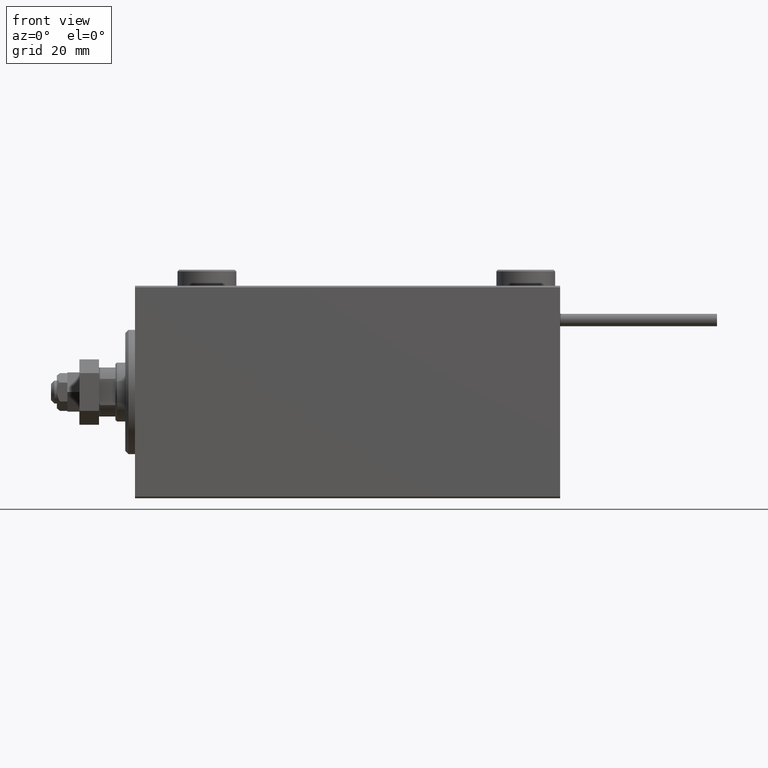
[diagram: clean part render]
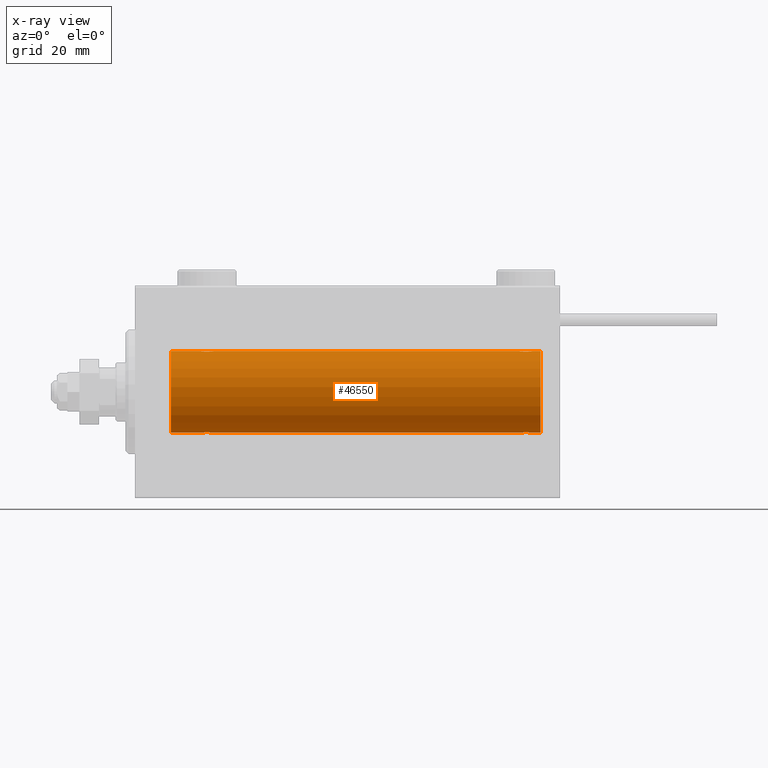
[diagram: x-ray — body ghosted, one internal face saturated and labeled with its STEP entity id]
A machine part, front view, then the same camera in x-ray: the body is ghosted and one INTERNAL B-rep face — a face not visible from any outside direction — is saturated and labeled: STEP entity #46550.
In plain terms, the highlighted cylindrical surface (partial cylindrical patch) has radius 12.5 mm, axis along (-1, -0, -0).
Its self-contained STEP definition (entity closure, byte-faithful):
#644 = EDGE_CURVE ( 'NONE', #34978, #51363, #21155, .T. ) ;
#934 = EDGE_CURVE ( 'NONE', #18625, #50167, #28142, .T. ) ;
#1193 = CARTESIAN_POINT ( 'NONE',  ( 117.4999999999999716, -0.2646816682749930094, -12.49999999999999289 ) ) ;
#1333 = ORIENTED_EDGE ( 'NONE', *, *, #24112, .T. ) ;
#1460 = CARTESIAN_POINT ( 'NONE',  ( 19.99999999999999645, -3.213890523917628161E-15, -12.50000000000000000 ) ) ;
#1518 = CARTESIAN_POINT ( 'NONE',  ( 20.00000000000000000, -0.2612140938986765581, 12.50000000000000000 ) ) ;
#1784 = CARTESIAN_POINT ( 'NONE',  ( 21.35356103036408371, -1.897190184049190043, 12.35529285772521391 ) ) ;
#1973 = CARTESIAN_POINT ( 'NONE',  ( 121.5000000000000284, -0.2612140938986731720, -12.50000000000000533 ) ) ;
#2295 = CARTESIAN_POINT ( 'NONE',  ( 20.20214393531741237, -0.8858253204748030019, 12.46915613403961132 ) ) ;
#3347 = ORIENTED_EDGE ( 'NONE', *, *, #13099, .T. ) ;
#4425 = EDGE_CURVE ( 'NONE', #52083, #15222, #25704, .T. ) ;
#4445 = EDGE_CURVE ( 'NONE', #47900, #41510, #8166, .T. ) ;
#5289 = VERTEX_POINT ( 'NONE', #48443 ) ;
#5433 = CARTESIAN_POINT ( 'NONE',  ( 121.4474434057233339, -0.5247436444070315842, -12.49130933415156797 ) ) ;
#5506 = CARTESIAN_POINT ( 'NONE',  ( 23.74662136620892383, -1.008535157355843648, 12.46157701909767823 ) ) ;
#5510 = CARTESIAN_POINT ( 'NONE',  ( 118.4965442592331613, -1.734959850168412254, 12.37922718965051061 ) ) ;
#5695 = DIRECTION ( 'NONE',  ( -1.000000000000000000, -0.000000000000000000, -0.000000000000000000 ) ) ;
#5948 = CARTESIAN_POINT ( 'NONE',  ( 121.5000000000000284, 1.530808426268740384E-15, -12.50000000000000000 ) ) ;
#6024 = CARTESIAN_POINT ( 'NONE',  ( 21.73608626897564733, -1.986793270638199882, 12.34112317291865146 ) ) ;
#6028 = CARTESIAN_POINT ( 'NONE',  ( 124.0000000000000000, 1.530808498934191521E-15, -12.50000000000000000 ) ) ;
#6469 = CARTESIAN_POINT ( 'NONE',  ( 117.7533786337911152, -1.008535157355854750, -12.46157701909767823 ) ) ;
#7078 = CARTESIAN_POINT ( 'NONE',  ( 120.1442527879773081, -1.897913903092038890, 12.35518060345724933 ) ) ;
#7399 = ORIENTED_EDGE ( 'NONE', *, *, #644, .T. ) ;
#8166 = B_SPLINE_CURVE_WITH_KNOTS ( 'NONE', 3,
 ( #30484, #46715, #13484, #10280, #26488, #33435, #45664, #41663, #29704, #5510, #21720, #33953, #43513, #38968, #11597, #51490, #27006, #39757, #7078, #46982, #51226, #14792, #19299, #31539, #52021, #47770, #15589, #31014 ),
 .UNSPECIFIED., .F., .F.,
 ( 4, 2, 2, 2, 2, 2, 2, 2, 2, 2, 2, 2, 2, 4 ),
 ( 0.006262980370572151546, 0.007045658964677331722, 0.007436998261729929616, 0.007828337558782528377, 0.008219676855835125404, 0.008611016152887724165, 0.009002355449940321191, 0.009393694746992919953, 0.009785034044045518714, 0.01017637334109811748, 0.01056771263815071624, 0.01095905193520331326, 0.01174173052930854028, 0.01252440912341376555 ),
 .UNSPECIFIED. ) ;
#8787 = CARTESIAN_POINT ( 'NONE',  ( 117.5000000000000142, -7.266434456262306043E-23, 12.50000000000000000 ) ) ;
#9416 = CARTESIAN_POINT ( 'NONE',  ( 120.1464389696359518, -1.897190184049184269, -12.35529285772521391 ) ) ;
#9430 = CARTESIAN_POINT ( 'NONE',  ( 20.05334320101619738, -0.5275951738695662252, -12.49118442338578561 ) ) ;
#9489 = CARTESIAN_POINT ( 'NONE',  ( 22.26093497285606304, -1.987194304939079004, 12.34105826212746138 ) ) ;
#9501 = ORIENTED_EDGE ( 'NONE', *, *, #934, .T. ) ;
#9690 = CARTESIAN_POINT ( 'NONE',  ( 23.94744340572329833, -0.5247436444070328054, -12.49130933415156619 ) ) ;
#9841 = DIRECTION ( 'NONE',  ( -1.000000000000000000, -0.000000000000000000, -0.000000000000000000 ) ) ;
#10202 = CARTESIAN_POINT ( 'NONE',  ( 119.7639137310243882, -1.986793270638199882, -12.34112317291865146 ) ) ;
#10280 = CARTESIAN_POINT ( 'NONE',  ( 117.7021439353173946, -0.8858253204748003373, 12.46915613403960421 ) ) ;
#10325 = CARTESIAN_POINT ( 'NONE',  ( 124.0000000000000000, 0.000000000000000000, 0.000000000000000000 ) ) ;
#11597 = CARTESIAN_POINT ( 'NONE',  ( 119.3665974954870705, -1.999916920503812534, 12.33897614545467647 ) ) ;
#13099 = EDGE_CURVE ( 'NONE', #5289, #35211, #43477, .T. ) ;
#13167 = EDGE_CURVE ( 'NONE', #34978, #35211, #13776, .T. ) ;
#13417 = CARTESIAN_POINT ( 'NONE',  ( 20.78145880458060901, -1.591305132013878021, -12.39851226212236313 ) ) ;
#13484 = CARTESIAN_POINT ( 'NONE',  ( 117.5525565942766946, -0.5247436444070334716, 12.49130933415156441 ) ) ;
#13747 = CARTESIAN_POINT ( 'NONE',  ( 24.00000000000000000, -2.019790789754703983E-15, 12.50000000000000000 ) ) ;
#13776 = LINE ( 'NONE', #29994, #38379 ) ;
#14468 = CARTESIAN_POINT ( 'NONE',  ( 23.50722151467992660, -1.321088093821078502, -12.43033959299025248 ) ) ;
#14788 = CARTESIAN_POINT ( 'NONE',  ( 21.86659749548704212, -1.999916920503819862, 12.33897614545467469 ) ) ;
#14792 = CARTESIAN_POINT ( 'NONE',  ( 120.7185411954193910, -1.591305132013873358, 12.39851226212235957 ) ) ;
#15141 = ORIENTED_EDGE ( 'NONE', *, *, #40535, .T. ) ;
#15222 = VERTEX_POINT ( 'NONE', #37769 ) ;
#15254 = ORIENTED_EDGE ( 'NONE', *, *, #49225, .F. ) ;
#15589 = CARTESIAN_POINT ( 'NONE',  ( 121.5000000000000568, -0.2646816682749792982, 12.50000000000000178 ) ) ;
#16778 = B_SPLINE_CURVE_WITH_KNOTS ( 'NONE', 3,
 ( #5948, #1973, #5433, #50878, #17913, #30404, #34130, #42106, #45854, #26145, #50368, #9416, #42364, #10202, #25624, #22160, #26410, #38634, #18423, #21643, #34646, #46898, #26668, #42898, #6469, #22683, #1193, #17650 ),
 .UNSPECIFIED., .F., .F.,
 ( 4, 2, 2, 2, 2, 2, 2, 2, 2, 2, 2, 2, 2, 4 ),
 ( 0.006262980370572161955, 0.007045658964677351671, 0.007436998261729953902, 0.007828337558782556133, 0.008219676855835158363, 0.008611016152887760594, 0.009002355449940364560, 0.009393694746992966790, 0.009785034044045570756, 0.01017637334109817299, 0.01056771263815077522, 0.01095905193520337745, 0.01174173052930858364, 0.01252440912341378984 ),
 .UNSPECIFIED. ) ;
#17010 = EDGE_LOOP ( 'NONE', ( #50822, #24755, #1333, #15141, #9501, #48637, #3347, #33100, #7399, #15254, #28986, #20726 ) ) ;
#17068 = CARTESIAN_POINT ( 'NONE',  ( 124.0000000000000000, 0.000000000000000000, 12.50000000000000000 ) ) ;
#17139 = AXIS2_PLACEMENT_3D ( 'NONE', #21590, #33304, #20800 ) ;
#17409 = CARTESIAN_POINT ( 'NONE',  ( 23.73563078019576977, -1.002396200863559184, -12.46022444231050663 ) ) ;
#17650 = CARTESIAN_POINT ( 'NONE',  ( 117.5000000000000142, -1.169483437805093529E-14, -12.50000000000000000 ) ) ;
#17913 = CARTESIAN_POINT ( 'NONE',  ( 121.2356307801957769, -1.002396200863557185, -12.46022444231050308 ) ) ;
#17985 = CARTESIAN_POINT ( 'NONE',  ( 22.88616153879432957, -1.797736511708064366, 12.37015393445321010 ) ) ;
#18423 = CARTESIAN_POINT ( 'NONE',  ( 118.8557472120227345, -1.897913903092052657, -12.35518060345725111 ) ) ;
#18438 = CARTESIAN_POINT ( 'NONE',  ( 23.79785606468258052, -0.8858253204748003373, -12.46915613403960954 ) ) ;
#18625 = VERTEX_POINT ( 'NONE', #32007 ) ;
#18769 = CARTESIAN_POINT ( 'NONE',  ( 20.41018909771709744, -1.220538259806348114, 12.44075068685996754 ) ) ;
#19212 = DIRECTION ( 'NONE',  ( -1.000000000000000000, -0.000000000000000000, -0.000000000000000000 ) ) ;
#19299 = CARTESIAN_POINT ( 'NONE',  ( 120.8211671285144604, -1.507135374967687458, 12.40915432986586886 ) ) ;
#19552 = CARTESIAN_POINT ( 'NONE',  ( 117.5000000000000142, -1.169483437805093529E-14, -12.50000000000000000 ) ) ;
#19925 = DIRECTION ( 'NONE',  ( -1.000000000000000000, 0.000000000000000000, 0.000000000000000000 ) ) ;
#20084 = EDGE_CURVE ( 'NONE', #50795, #41510, #23117, .T. ) ;
#20726 = ORIENTED_EDGE ( 'NONE', *, *, #20084, .F. ) ;
#20800 = DIRECTION ( 'NONE',  ( 0.000000000000000000, 0.000000000000000000, 1.000000000000000000 ) ) ;
#20942 = CARTESIAN_POINT ( 'NONE',  ( 124.0000000000000000, 1.530808498934191521E-15, -12.50000000000000000 ) ) ;
#21155 = B_SPLINE_CURVE_WITH_KNOTS ( 'NONE', 3,
 ( #42440, #1518, #38707, #2295, #30746, #18769, #22234, #46976, #26743, #42972, #22755, #1784, #34990, #6024, #14788, #31010, #9489, #25964, #50434, #17985, #34205, #25701, #41921, #26216, #5506, #21717, #50184, #13747 ),
 .UNSPECIFIED., .F., .F.,
 ( 4, 2, 2, 2, 2, 2, 2, 2, 2, 2, 2, 2, 2, 4 ),
 ( 0.006262980370572162822, 0.007045658964677358610, 0.007436998261729958239, 0.007828337558782557867, 0.008219676855835158363, 0.008611016152887758859, 0.009002355449940359355, 0.009393694746992958117, 0.009785034044045558613, 0.01017637334109815911, 0.01056771263815075960, 0.01095905193520336010, 0.01174173052930856803, 0.01252440912341377596 ),
 .UNSPECIFIED. ) ;
#21590 = CARTESIAN_POINT ( 'NONE',  ( 124.0000000000000000, 0.000000000000000000, 0.000000000000000000 ) ) ;
#21643 = CARTESIAN_POINT ( 'NONE',  ( 118.6138384612056456, -1.797736511708069473, -12.37015393445320477 ) ) ;
#21659 = CARTESIAN_POINT ( 'NONE',  ( 20.40255225308977671, -1.231226695485369893, -12.44059298055988627 ) ) ;
#21717 = CARTESIAN_POINT ( 'NONE',  ( 23.94665679898379906, -0.5275951738695691118, 12.49118442338578561 ) ) ;
#21720 = CARTESIAN_POINT ( 'NONE',  ( 118.6112527420296772, -1.796480516834681573, 12.37033750336835958 ) ) ;
#21911 = CARTESIAN_POINT ( 'NONE',  ( 23.00345574076691335, -1.734959850168410256, -12.37922718965050528 ) ) ;
#22160 = CARTESIAN_POINT ( 'NONE',  ( 119.3691003267658459, -2.000082296475571120, -12.33894933996983134 ) ) ;
#22234 = CARTESIAN_POINT ( 'NONE',  ( 20.49277848532006274, -1.321088093821079168, 12.43033959299025071 ) ) ;
#22238 = DIRECTION ( 'NONE',  ( -1.000000000000000000, -0.000000000000000000, -0.000000000000000000 ) ) ;
#22683 = CARTESIAN_POINT ( 'NONE',  ( 117.5533432010162187, -0.5275951738695822124, -12.49118442338578383 ) ) ;
#22755 = CARTESIAN_POINT ( 'NONE',  ( 21.11125274202960256, -1.796480516834689567, 12.37033750336835602 ) ) ;
#23117 = LINE ( 'NONE', #51051, #32693 ) ;
#24112 = EDGE_CURVE ( 'NONE', #15222, #35330, #16778, .T. ) ;
#24755 = ORIENTED_EDGE ( 'NONE', *, *, #4425, .T. ) ;
#25624 = CARTESIAN_POINT ( 'NONE',  ( 119.6334025045129863, -1.999916920503819862, -12.33897614545467469 ) ) ;
#25640 = CARTESIAN_POINT ( 'NONE',  ( 21.11383846120566332, -1.797736511708062368, -12.37015393445320122 ) ) ;
#25701 = CARTESIAN_POINT ( 'NONE',  ( 23.21854119541937678, -1.591305132013879131, 12.39851226212236135 ) ) ;
#25704 = LINE ( 'NONE', #6028, #49236 ) ;
#25905 = CARTESIAN_POINT ( 'NONE',  ( 21.35574721202270254, -1.897913903092047327, -12.35518060345725289 ) ) ;
#25964 = CARTESIAN_POINT ( 'NONE',  ( 22.51693726697628506, -1.936441098420709439, 12.34912369794528786 ) ) ;
#26145 = CARTESIAN_POINT ( 'NONE',  ( 120.5034557407669240, -1.734959850168412476, -12.37922718965050528 ) ) ;
#26216 = CARTESIAN_POINT ( 'NONE',  ( 23.59744774691022684, -1.231226695485370337, 12.44059298055987917 ) ) ;
#26410 = CARTESIAN_POINT ( 'NONE',  ( 119.2390650271439370, -1.987194304939082556, -12.34105826212746138 ) ) ;
#26424 = CARTESIAN_POINT ( 'NONE',  ( 21.86910032676576421, -2.000082296475566679, -12.33894933996983490 ) ) ;
#26488 = CARTESIAN_POINT ( 'NONE',  ( 117.7643692198042658, -1.002396200863564291, 12.46022444231050663 ) ) ;
#26668 = CARTESIAN_POINT ( 'NONE',  ( 118.1788328714855822, -1.507135374967708552, -12.40915432986586531 ) ) ;
#26682 = CARTESIAN_POINT ( 'NONE',  ( 22.13340250451295077, -1.999916920503817197, -12.33897614545467469 ) ) ;
#26743 = CARTESIAN_POINT ( 'NONE',  ( 20.77972850102579372, -1.589951752150277953, 12.39868561261689095 ) ) ;
#27006 = CARTESIAN_POINT ( 'NONE',  ( 119.7609349728560630, -1.987194304939074341, 12.34105826212746138 ) ) ;
#28142 = B_SPLINE_CURVE_WITH_KNOTS ( 'NONE', 3,
 ( #38902, #50634, #9690, #18438, #17409, #33892, #14468, #46915, #30419, #21911, #41860, #29907, #46655, #29640, #26682, #26424, #34662, #42913, #25905, #25640, #33632, #13417, #50123, #21659, #45868, #9430, #37871, #1460 ),
 .UNSPECIFIED., .F., .F.,
 ( 4, 2, 2, 2, 2, 2, 2, 2, 2, 2, 2, 2, 2, 4 ),
 ( 0.006262980370572176700, 0.007045658964677373355, 0.007436998261729973851, 0.007828337558782575215, 0.008219676855835175711, 0.008611016152887776207, 0.009002355449940376703, 0.009393694746992977199, 0.009785034044045577695, 0.01017637334109817646, 0.01056771263815077869, 0.01095905193520337745, 0.01174173052930858711, 0.01252440912341379504 ),
 .UNSPECIFIED. ) ;
#28261 = DIRECTION ( 'NONE',  ( -1.000000000000000000, -0.000000000000000000, -0.000000000000000000 ) ) ;
#28517 = LINE ( 'NONE', #17068, #50398 ) ;
#28986 = ORIENTED_EDGE ( 'NONE', *, *, #4445, .T. ) ;
#29640 = CARTESIAN_POINT ( 'NONE',  ( 22.26391373102435622, -1.986793270638196551, -12.34112317291864791 ) ) ;
#29702 = VECTOR ( 'NONE', #19212, 1000.000000000000000 ) ;
#29704 = CARTESIAN_POINT ( 'NONE',  ( 118.2797285010258008, -1.589951752150278397, 12.39868561261688740 ) ) ;
#29907 = CARTESIAN_POINT ( 'NONE',  ( 22.64643896963591985, -1.897190184049187378, -12.35529285772521924 ) ) ;
#29994 = CARTESIAN_POINT ( 'NONE',  ( 124.0000000000000000, 0.000000000000000000, 12.50000000000000000 ) ) ;
#30095 = CARTESIAN_POINT ( 'NONE',  ( 24.00000000000000000, -2.019790789754703983E-15, 12.50000000000000000 ) ) ;
#30404 = CARTESIAN_POINT ( 'NONE',  ( 121.0898109022829203, -1.220538259806346115, -12.44075068685996932 ) ) ;
#30419 = CARTESIAN_POINT ( 'NONE',  ( 23.22027149897420628, -1.589951752150275732, -12.39868561261689273 ) ) ;
#30484 = CARTESIAN_POINT ( 'NONE',  ( 117.5000000000000142, -7.266434456262306043E-23, 12.50000000000000000 ) ) ;
#30667 = LINE ( 'NONE', #34384, #29702 ) ;
#30746 = CARTESIAN_POINT ( 'NONE',  ( 20.26436921980423378, -1.002396200863559850, 12.46022444231050841 ) ) ;
#31010 = CARTESIAN_POINT ( 'NONE',  ( 22.13089967323422158, -2.000082296475567567, 12.33894933996983134 ) ) ;
#31014 = CARTESIAN_POINT ( 'NONE',  ( 121.5000000000000284, 3.163483401492493339E-15, 12.50000000000000000 ) ) ;
#31539 = CARTESIAN_POINT ( 'NONE',  ( 121.0974477469102766, -1.231226695485355904, 12.44059298055988450 ) ) ;
#32007 = CARTESIAN_POINT ( 'NONE',  ( 24.00000000000000000, 1.530808426277417854E-15, -12.50000000000000000 ) ) ;
#32153 = DIRECTION ( 'NONE',  ( 0.000000000000000000, 0.000000000000000000, 1.000000000000000000 ) ) ;
#32524 = CYLINDRICAL_SURFACE ( 'NONE', #17139, 12.50000000000000000 ) ;
#32693 = VECTOR ( 'NONE', #9841, 1000.000000000000000 ) ;
#33100 = ORIENTED_EDGE ( 'NONE', *, *, #13167, .F. ) ;
#33304 = DIRECTION ( 'NONE',  ( -1.000000000000000000, -0.000000000000000000, -0.000000000000000000 ) ) ;
#33435 = CARTESIAN_POINT ( 'NONE',  ( 117.9101890977171223, -1.220538259806350778, 12.44075068685996754 ) ) ;
#33632 = CARTESIAN_POINT ( 'NONE',  ( 20.99900207901491811, -1.736403706023270654, -12.37902502246767966 ) ) ;
#33736 = DIRECTION ( 'NONE',  ( -1.000000000000000000, 0.000000000000000000, 0.000000000000000000 ) ) ;
#33892 = CARTESIAN_POINT ( 'NONE',  ( 23.58981090228289546, -1.220538259806347225, -12.44075068685997287 ) ) ;
#33953 = CARTESIAN_POINT ( 'NONE',  ( 118.8535610303640624, -1.897190184049181161, 12.35529285772521213 ) ) ;
#34130 = CARTESIAN_POINT ( 'NONE',  ( 121.0072215146799408, -1.321088093821078502, -12.43033959299025071 ) ) ;
#34205 = CARTESIAN_POINT ( 'NONE',  ( 23.00099792098507834, -1.736403706023272875, 12.37902502246767789 ) ) ;
#34384 = CARTESIAN_POINT ( 'NONE',  ( 124.0000000000000000, 1.530808498934191521E-15, -12.50000000000000000 ) ) ;
#34646 = CARTESIAN_POINT ( 'NONE',  ( 118.4990020790149146, -1.736403706023274651, -12.37902502246767611 ) ) ;
#34662 = CARTESIAN_POINT ( 'NONE',  ( 21.73906502714393341, -1.987194304939077671, -12.34105826212746138 ) ) ;
#34901 = EDGE_CURVE ( 'NONE', #52083, #50795, #35503, .T. ) ;
#34978 = VERTEX_POINT ( 'NONE', #35568 ) ;
#34990 = CARTESIAN_POINT ( 'NONE',  ( 21.48038527642126283, -1.935716533151644381, 12.34923763528284901 ) ) ;
#35211 = VERTEX_POINT ( 'NONE', #49654 ) ;
#35330 = VERTEX_POINT ( 'NONE', #19552 ) ;
#35503 = CIRCLE ( 'NONE', #39737, 12.50000000000000000 ) ;
#35568 = CARTESIAN_POINT ( 'NONE',  ( 19.99999999999999645, -7.265724481447607133E-23, 12.50000000000000000 ) ) ;
#37546 = AXIS2_PLACEMENT_3D ( 'NONE', #39324, #19925, #32153 ) ;
#37609 = CARTESIAN_POINT ( 'NONE',  ( 124.0000000000000000, 1.530808498934191521E-15, -12.50000000000000000 ) ) ;
#37769 = CARTESIAN_POINT ( 'NONE',  ( 121.5000000000000284, 1.530808426268740384E-15, -12.50000000000000000 ) ) ;
#37871 = CARTESIAN_POINT ( 'NONE',  ( 20.00000000000000000, -0.2646816682749822958, -12.50000000000000000 ) ) ;
#38379 = VECTOR ( 'NONE', #38479, 1000.000000000000000 ) ;
#38479 = DIRECTION ( 'NONE',  ( -1.000000000000000000, -0.000000000000000000, -0.000000000000000000 ) ) ;
#38634 = CARTESIAN_POINT ( 'NONE',  ( 118.9830627330237434, -1.936441098420713214, -12.34912369794528963 ) ) ;
#38707 = CARTESIAN_POINT ( 'NONE',  ( 20.05255659427669812, -0.5247436444070349149, 12.49130933415156974 ) ) ;
#38902 = CARTESIAN_POINT ( 'NONE',  ( 24.00000000000000000, 1.530808426277417854E-15, -12.50000000000000000 ) ) ;
#38968 = CARTESIAN_POINT ( 'NONE',  ( 119.2360862689757113, -1.986793270638193443, 12.34112317291865146 ) ) ;
#39324 = CARTESIAN_POINT ( 'NONE',  ( 10.99999999999999645, 0.000000000000000000, 0.000000000000000000 ) ) ;
#39737 = AXIS2_PLACEMENT_3D ( 'NONE', #10325, #33736, #42230 ) ;
#39757 = CARTESIAN_POINT ( 'NONE',  ( 120.0169372669763135, -1.936441098420705220, 12.34912369794528786 ) ) ;
#40535 = EDGE_CURVE ( 'NONE', #35330, #18625, #30667, .T. ) ;
#41314 = EDGE_CURVE ( 'NONE', #50167, #5289, #42119, .T. ) ;
#41510 = VERTEX_POINT ( 'NONE', #42309 ) ;
#41663 = CARTESIAN_POINT ( 'NONE',  ( 118.1770005689227219, -1.505544071529930639, 12.40934942683854025 ) ) ;
#41860 = CARTESIAN_POINT ( 'NONE',  ( 22.88874725797039389, -1.796480516834687347, -12.37033750336835247 ) ) ;
#41921 = CARTESIAN_POINT ( 'NONE',  ( 23.32116712851443552, -1.507135374967700114, 12.40915432986586708 ) ) ;
#42106 = CARTESIAN_POINT ( 'NONE',  ( 120.8229994310773776, -1.505544071529937078, -12.40934942683854381 ) ) ;
#42119 = LINE ( 'NONE', #37609, #50092 ) ;
#42230 = DIRECTION ( 'NONE',  ( 0.000000000000000000, 0.000000000000000000, 1.000000000000000000 ) ) ;
#42309 = CARTESIAN_POINT ( 'NONE',  ( 121.5000000000000284, 3.163483401492493339E-15, 12.50000000000000000 ) ) ;
#42364 = CARTESIAN_POINT ( 'NONE',  ( 120.0196147235787834, -1.935716533151644825, -12.34923763528285079 ) ) ;
#42440 = CARTESIAN_POINT ( 'NONE',  ( 19.99999999999999645, -7.265724481447607133E-23, 12.50000000000000000 ) ) ;
#42898 = CARTESIAN_POINT ( 'NONE',  ( 117.9025522530897661, -1.231226695485379219, -12.44059298055988094 ) ) ;
#42913 = CARTESIAN_POINT ( 'NONE',  ( 21.48306273302371494, -1.936441098420706997, -12.34912369794528431 ) ) ;
#42972 = CARTESIAN_POINT ( 'NONE',  ( 20.99654425923307599, -1.734959850168413142, 12.37922718965050528 ) ) ;
#43477 = CIRCLE ( 'NONE', #37546, 12.50000000000000000 ) ;
#43513 = CARTESIAN_POINT ( 'NONE',  ( 118.9803852764212735, -1.935716533151639718, 12.34923763528284546 ) ) ;
#45664 = CARTESIAN_POINT ( 'NONE',  ( 117.9927784853201018, -1.321088093821075393, 12.43033959299025426 ) ) ;
#45854 = CARTESIAN_POINT ( 'NONE',  ( 120.7202714989742418, -1.589951752150277509, -12.39868561261689273 ) ) ;
#45868 = CARTESIAN_POINT ( 'NONE',  ( 20.25337863379106551, -1.008535157355840761, -12.46157701909767646 ) ) ;
#46550 = ADVANCED_FACE ( 'NONE', ( #49791 ), #32524, .F. ) ;
#46655 = CARTESIAN_POINT ( 'NONE',  ( 22.51961472357873717, -1.935716533151642826, -12.34923763528285257 ) ) ;
#46715 = CARTESIAN_POINT ( 'NONE',  ( 117.5000000000000142, -0.2612140938986747818, 12.50000000000000000 ) ) ;
#46898 = CARTESIAN_POINT ( 'NONE',  ( 118.2814588045806232, -1.591305132013882462, -12.39851226212235957 ) ) ;
#46915 = CARTESIAN_POINT ( 'NONE',  ( 23.32299943107732432, -1.505544071529935080, -12.40934942683853848 ) ) ;
#46976 = CARTESIAN_POINT ( 'NONE',  ( 20.67700056892266502, -1.505544071529936634, 12.40934942683854025 ) ) ;
#46982 = CARTESIAN_POINT ( 'NONE',  ( 120.3861615387943544, -1.797736511708053264, 12.37015393445321010 ) ) ;
#47298 = CARTESIAN_POINT ( 'NONE',  ( 124.0000000000000000, 0.000000000000000000, 12.50000000000000000 ) ) ;
#47770 = CARTESIAN_POINT ( 'NONE',  ( 121.4466567989838524, -0.5275951738695600080, 12.49118442338578561 ) ) ;
#47900 = VERTEX_POINT ( 'NONE', #8787 ) ;
#48443 = CARTESIAN_POINT ( 'NONE',  ( 10.99999999999999645, 1.530808498934191521E-15, -12.50000000000000000 ) ) ;
#48637 = ORIENTED_EDGE ( 'NONE', *, *, #41314, .T. ) ;
#49225 = EDGE_CURVE ( 'NONE', #47900, #51363, #28517, .T. ) ;
#49236 = VECTOR ( 'NONE', #22238, 1000.000000000000000 ) ;
#49270 = CARTESIAN_POINT ( 'NONE',  ( 19.99999999999999645, -3.213890523917628161E-15, -12.50000000000000000 ) ) ;
#49654 = CARTESIAN_POINT ( 'NONE',  ( 10.99999999999999645, 0.000000000000000000, 12.50000000000000000 ) ) ;
#49791 = FACE_OUTER_BOUND ( 'NONE', #17010, .T. ) ;
#50092 = VECTOR ( 'NONE', #5695, 1000.000000000000000 ) ;
#50123 = CARTESIAN_POINT ( 'NONE',  ( 20.67883287148555382, -1.507135374967699670, -12.40915432986587064 ) ) ;
#50167 = VERTEX_POINT ( 'NONE', #49270 ) ;
#50184 = CARTESIAN_POINT ( 'NONE',  ( 23.99999999999998934, -0.2646816682749779659, 12.49999999999999822 ) ) ;
#50368 = CARTESIAN_POINT ( 'NONE',  ( 120.3887472579704223, -1.796480516834683350, -12.37033750336835602 ) ) ;
#50398 = VECTOR ( 'NONE', #28261, 1000.000000000000000 ) ;
#50434 = CARTESIAN_POINT ( 'NONE',  ( 22.64425278797729746, -1.897913903092049104, 12.35518060345724933 ) ) ;
#50634 = CARTESIAN_POINT ( 'NONE',  ( 24.00000000000000711, -0.2612140938986747818, -12.50000000000000533 ) ) ;
#50795 = VERTEX_POINT ( 'NONE', #47298 ) ;
#50822 = ORIENTED_EDGE ( 'NONE', *, *, #34901, .F. ) ;
#50878 = CARTESIAN_POINT ( 'NONE',  ( 121.2978560646825912, -0.8858253204747998932, -12.46915613403960776 ) ) ;
#51051 = CARTESIAN_POINT ( 'NONE',  ( 124.0000000000000000, 0.000000000000000000, 12.50000000000000000 ) ) ;
#51226 = CARTESIAN_POINT ( 'NONE',  ( 120.5009979209850997, -1.736403706023266658, 12.37902502246767789 ) ) ;
#51363 = VERTEX_POINT ( 'NONE', #30095 ) ;
#51490 = CARTESIAN_POINT ( 'NONE',  ( 119.6308996732342393, -2.000082296475560906, 12.33894933996983490 ) ) ;
#52021 = CARTESIAN_POINT ( 'NONE',  ( 121.2466213662089842, -1.008535157355832768, 12.46157701909768178 ) ) ;
#52083 = VERTEX_POINT ( 'NONE', #20942 ) ;